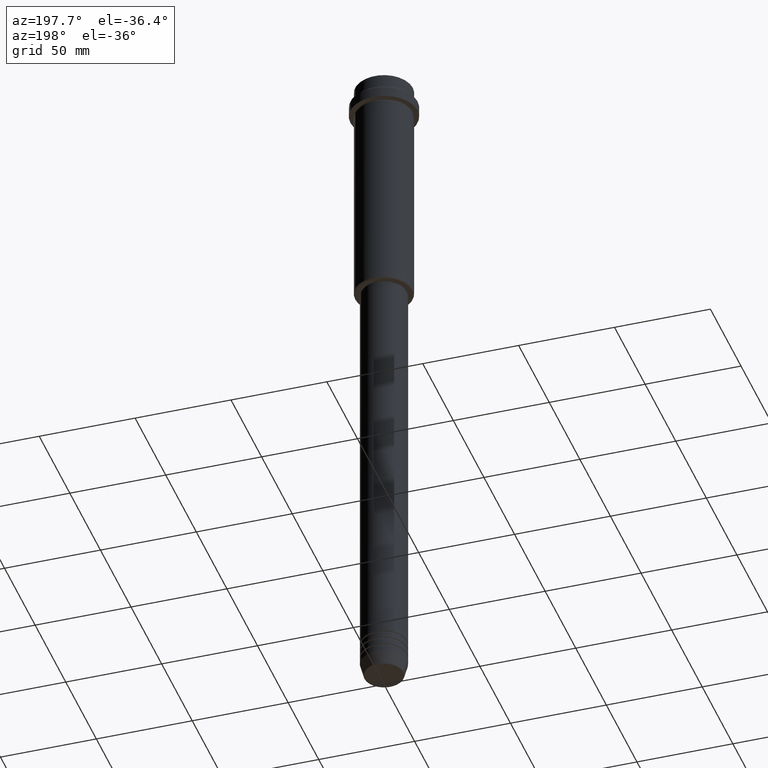
[diagram: clean part render]
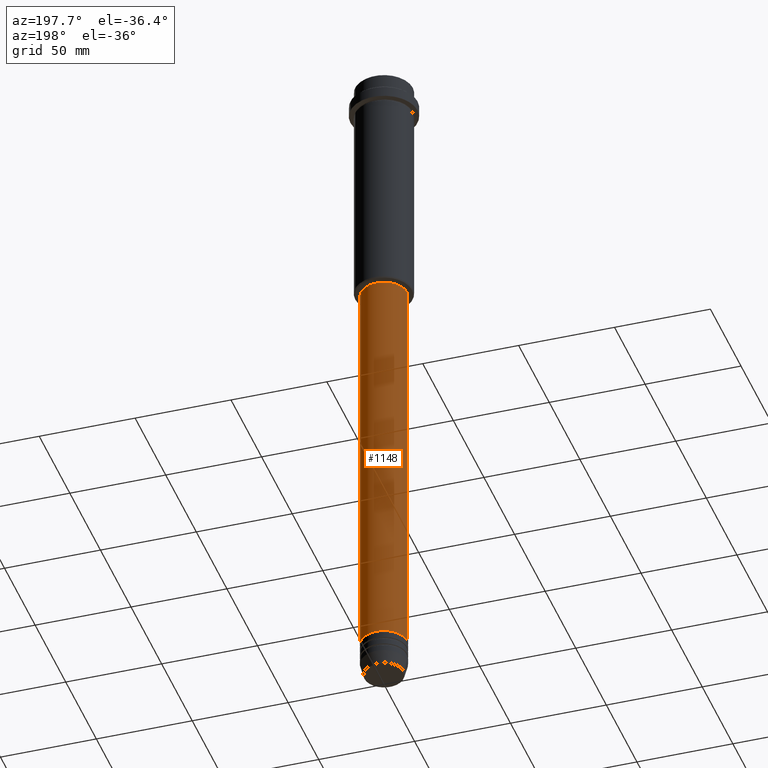
[diagram: same view with one face highlighted and labeled with its STEP entity id]
A machine part, auxiliary view. The second image highlights one B-rep face of the part: STEP entity #1148.
In plain terms, the highlighted cylindrical surface (edge-blend (fillet) strip) has radius 12 mm, axis along (-0, -0, 1).
Its self-contained STEP definition (entity closure, byte-faithful):
#48 = VERTEX_POINT ( 'NONE', #69 ) ;
#68 = AXIS2_PLACEMENT_3D ( 'NONE', #343, #776, #992 ) ;
#69 = CARTESIAN_POINT ( 'NONE',  ( 11.99999999999999822, 0.000000000000000000, -125.9999999999999147 ) ) ;
#94 = CARTESIAN_POINT ( 'NONE',  ( 12.00000000000000000, 0.000000000000000000, 0.000000000000000000 ) ) ;
#119 = VECTOR ( 'NONE', #494, 1000.000000000000000 ) ;
#144 = CARTESIAN_POINT ( 'NONE',  ( -12.00000000000000000, 1.469576158976823947E-15, -340.9999999999998863 ) ) ;
#159 = EDGE_CURVE ( 'NONE', #782, #48, #756, .T. ) ;
#212 = CIRCLE ( 'NONE', #68, 12.00000000000000000 ) ;
#257 = ORIENTED_EDGE ( 'NONE', *, *, #159, .F. ) ;
#287 = EDGE_LOOP ( 'NONE', ( #1324, #401, #810, #257 ) ) ;
#331 = CIRCLE ( 'NONE', #1168, 11.99999999999999822 ) ;
#343 = CARTESIAN_POINT ( 'NONE',  ( 0.000000000000000000, 0.000000000000000000, -340.9999999999998863 ) ) ;
#353 = CARTESIAN_POINT ( 'NONE',  ( -12.00000000000000000, 1.469576158976823947E-15, 0.000000000000000000 ) ) ;
#401 = ORIENTED_EDGE ( 'NONE', *, *, #439, .T. ) ;
#410 = EDGE_CURVE ( 'NONE', #782, #1174, #212, .T. ) ;
#439 = EDGE_CURVE ( 'NONE', #1174, #821, #1328, .T. ) ;
#469 = EDGE_CURVE ( 'NONE', #48, #821, #331, .T. ) ;
#474 = CARTESIAN_POINT ( 'NONE',  ( -11.99999999999999822, 1.469576158976823750E-15, -125.9999999999999147 ) ) ;
#494 = DIRECTION ( 'NONE',  ( -0.000000000000000000, -0.000000000000000000, 1.000000000000000000 ) ) ;
#756 = LINE ( 'NONE', #94, #1326 ) ;
#763 = CYLINDRICAL_SURFACE ( 'NONE', #1133, 12.00000000000000000 ) ;
#776 = DIRECTION ( 'NONE',  ( -0.000000000000000000, -0.000000000000000000, 1.000000000000000000 ) ) ;
#782 = VERTEX_POINT ( 'NONE', #1339 ) ;
#810 = ORIENTED_EDGE ( 'NONE', *, *, #469, .F. ) ;
#821 = VERTEX_POINT ( 'NONE', #474 ) ;
#963 = DIRECTION ( 'NONE',  ( -0.000000000000000000, -0.000000000000000000, 1.000000000000000000 ) ) ;
#966 = FACE_OUTER_BOUND ( 'NONE', #287, .T. ) ;
#992 = DIRECTION ( 'NONE',  ( 1.000000000000000000, 0.000000000000000000, 0.000000000000000000 ) ) ;
#1006 = DIRECTION ( 'NONE',  ( 1.000000000000000000, 0.000000000000000000, 0.000000000000000000 ) ) ;
#1080 = CARTESIAN_POINT ( 'NONE',  ( 0.000000000000000000, 0.000000000000000000, 0.000000000000000000 ) ) ;
#1133 = AXIS2_PLACEMENT_3D ( 'NONE', #1080, #1404, #1006 ) ;
#1148 = ADVANCED_FACE ( 'NONE', ( #966 ), #763, .T. ) ;
#1168 = AXIS2_PLACEMENT_3D ( 'NONE', #1262, #1230, #1358 ) ;
#1174 = VERTEX_POINT ( 'NONE', #144 ) ;
#1230 = DIRECTION ( 'NONE',  ( -0.000000000000000000, -0.000000000000000000, 1.000000000000000000 ) ) ;
#1262 = CARTESIAN_POINT ( 'NONE',  ( 0.000000000000000000, 0.000000000000000000, -125.9999999999999147 ) ) ;
#1324 = ORIENTED_EDGE ( 'NONE', *, *, #410, .T. ) ;
#1326 = VECTOR ( 'NONE', #963, 1000.000000000000000 ) ;
#1328 = LINE ( 'NONE', #353, #119 ) ;
#1339 = CARTESIAN_POINT ( 'NONE',  ( 12.00000000000000000, 0.000000000000000000, -340.9999999999998863 ) ) ;
#1358 = DIRECTION ( 'NONE',  ( 1.000000000000000000, 0.000000000000000000, 0.000000000000000000 ) ) ;
#1404 = DIRECTION ( 'NONE',  ( -0.000000000000000000, -0.000000000000000000, 1.000000000000000000 ) ) ;